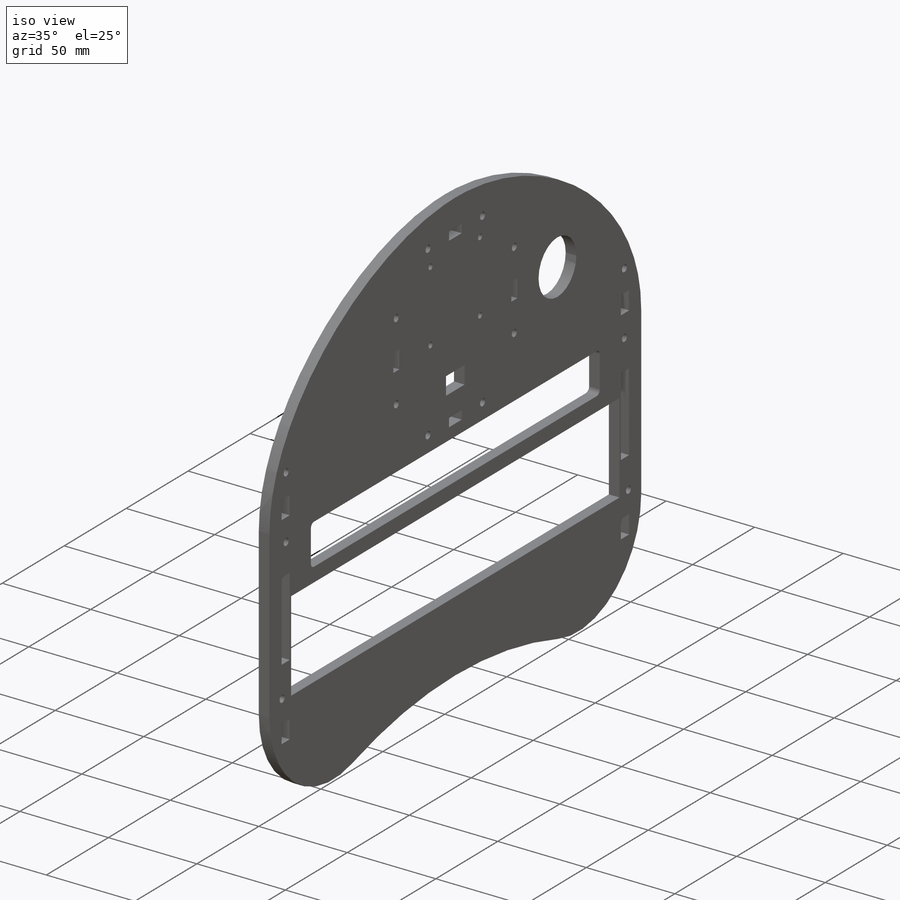
[diagram: iso view]
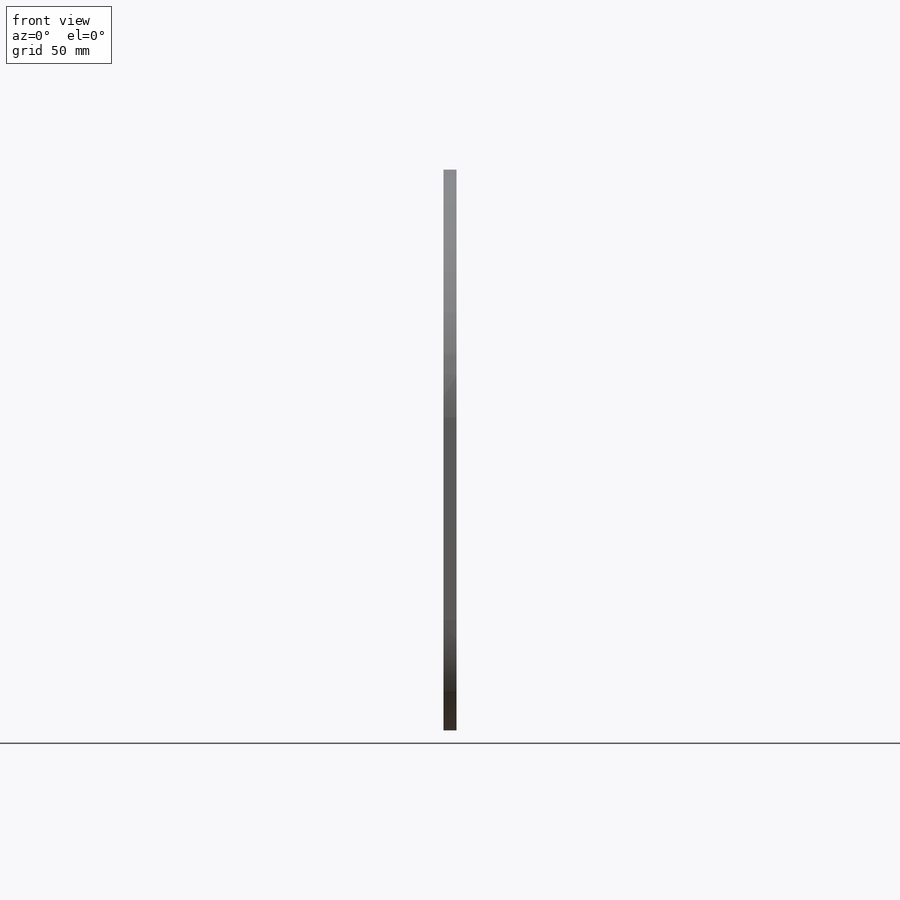
[diagram: front view]
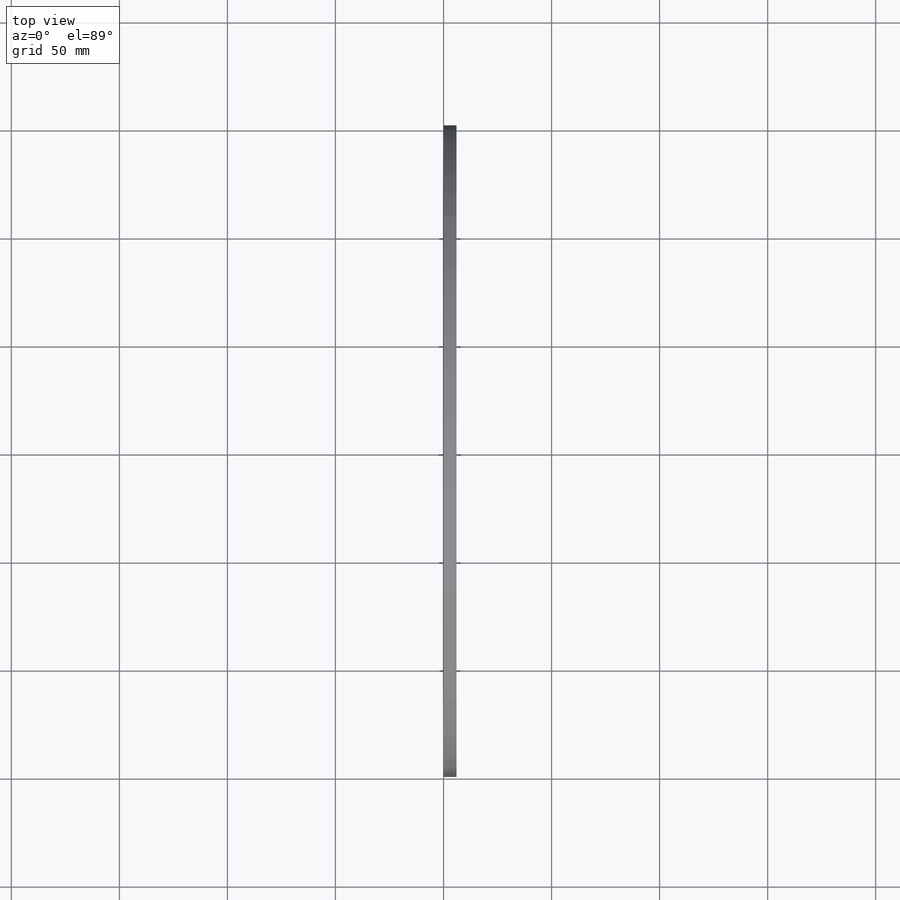
[diagram: top view]
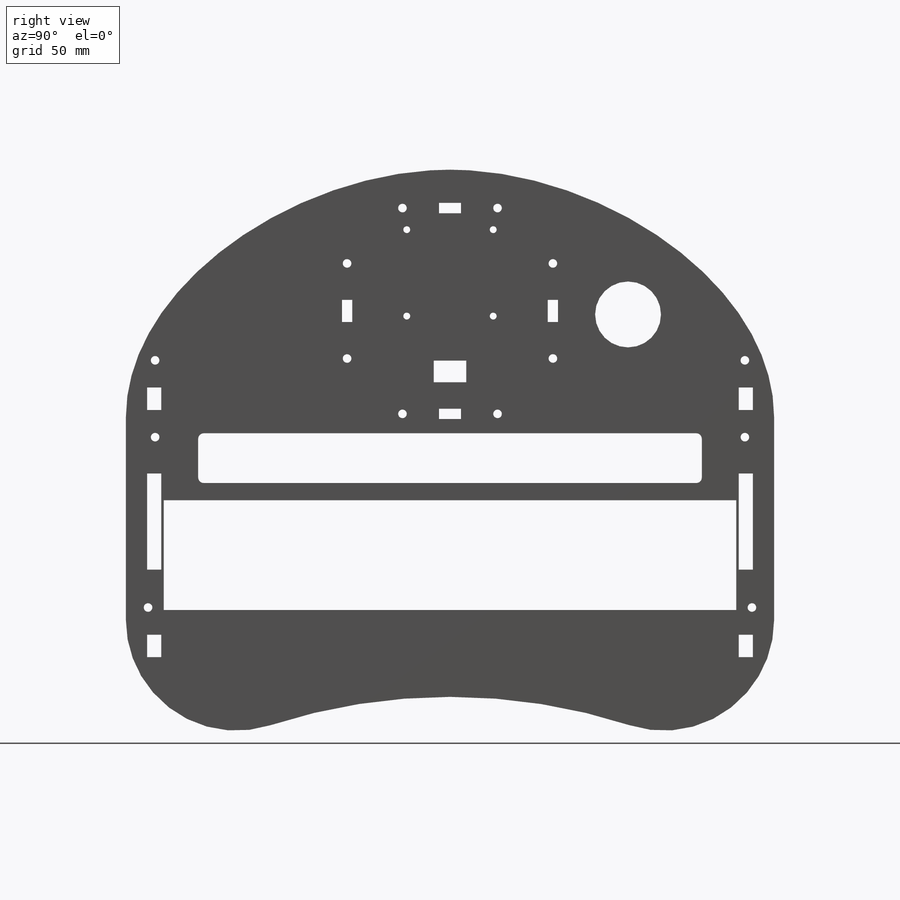
[diagram: right view]
SOLIDWORKS PART (.sldprt)
format: sldprt  version: not decoded by parser v0  size: 522,752 bytes
history: native  units: mm
features: fillet x8, sketch x2, material x1, extrude x1, cut_extrude x1 (+11 scaffold rows collapsed)
feature tree (24):
  scaffold x11  (default folders/planes/origin — collapsed)
  material  "Material <not specified>"
  sketch  "Sketch1"  dims[c1.D12=~63.667518mm c1.D13=70.0mm c2.D12=3.6428mm c2.D3=~4.679114mm c2.D7=~171.487481mm c2.D25=~6.118555mm c2.D13=~11.757157mm c2.D17=~179.530008mm c3.D3=~5.667585mm c3.D9=~177.758261mm c3.D17=~6.517479mm c3.D26=~3.46204mm c4.D9=~172.126197mm c4.D24=~172.126197mm c5.D9=177.8mm c5.D29=~3.96875mm c5.D1=152.54mm c5.D2=162.7mm c5.D3=143.34mm c5.D4=143.256mm c5.D5=247.65mm c5.D6=35.0mm c5.D7=6.0mm c5.D8=233.08mm c6.D9=24.0mm c6.D10=160.0mm c6.D11=160.0mm c7.D9=6.0mm c7.D10=160.0mm c7.D11=160.0mm c7.D12=6.0mm c8.D12=90.0deg c9.D12=120.0mm c9.D14=120.0mm c9.D15=120.0mm c10.D14=130.0mm c10.D15=60.0mm c10.D16=~126.110021mm c10.D17=~131.804725mm c11.D17=~179.753575deg c12.D17=~207.179221mm c13.D17=~179.753575deg c14.D17=~131.804725mm c15.D17=~179.753575deg c16.D17=~207.179221mm c17.D17=~0.246425deg c18.D17=~276.219303mm c18.D3=10.1mm c18.D7=2.5mm c18.D9=5.9944mm c18.D16=10.16mm c18.D18=~10.18332mm c18.D19=2.6mm c18.D20=~1.289363mm c18.D21=~1.289363mm c19.D20=~1.289363mm c19.D21=~1.289363mm c19.D19=~1.289363mm c19.D18=17.78mm c20.D19=17.78mm c20.D20=17.78mm c20.D21=17.78mm c20.D22=17.78mm c20.D23=10.16mm c20.D24=5.9944mm c20.D25=~113.00648mm c20.D4=~277.625935mm c20.D7=35.56mm c20.D5=50.8mm c20.D6=23.0mm c21.D7=247.65mm c21.D10=33.528mm c21.D11=~33.415318mm c21.D13=~33.415318mm c21.D17=33.528mm c22.D10=33.528mm c22.D13=~114.366307mm c23.D13=~1.134216deg c23.D17=~116.410518mm c24.D13=304.8mm c24.D17=203.2mm c24.D9=53.34mm c24.D16=10.16mm c25.D17=5.9944mm c26.D17=90.0deg c27.D17=5.9944mm c28.D17=90.0deg c29.D17=5.9944mm c29.D19=17.78mm c29.D3=169.926mm c29.D9=152.4mm c29.D13=152.4mm c29.D2=5.9944mm c30.D3=9.906mm c30.D4=~160.020845mm c30.D16=10.16mm c30.D17=17.78mm c30.D18=46.228mm c30.D19=38.1mm c30.D20=~15.469952mm c30.D21=12.7mm c30.D22=17.78mm c30.D23=17.78mm c30.D24=5.9944mm c30.D25=17.78mm c30.D26=9.906mm c30.D27=9.906mm c30.D28=5.9944mm c30.D9=15.24mm c30.D13=15.24mm c31.D19=116.54mm c31.D29=116.54mm c31.D13=~15.469952mm c31.D30=50.8mm c31.D9=152.4mm c32.D30=152.4mm c32.D31=6.55mm c32.D32=5.9944mm c32.D9=152.4mm c32.D13=152.4mm c32.D19=150.0mm c32.D4=15.494mm c32.D20=25.4mm c32.D24=10.36mm c32.D26=160.02mm c33.D20=38.1mm c33.D26=~1.175364mm c34.D20=8.636mm c34.D21=36.83mm c34.D26=6.858mm c34.D27=6.55mm c34.D28=6.858mm c34.D29=5.9944mm c34.D30=150.0mm c34.D32=150.0mm c34.D33=8.636mm c34.D7=17.78mm c34.D9=17.553mm c34.D12=17.78mm c34.D13=17.78mm c34.D15=17.78mm c34.D16=44.45mm c34.D17=17.78mm c34.D18=154.94mm c35.D20=132.5mm c35.D21=67.0mm c35.D14=70.0mm c36.D21=~43.37473mm c36.D22=90.0deg c37.D22=3.429mm c37.D23=4.406mm c38.D22=4.406mm c38.D23=4.406mm c39.D22=4.406mm c39.D23=4.406mm c40.D22=4.406mm c40.D4=4.406mm c40.D21=~77.871926mm c41.D22=~70.04125mm c41.D23=~38.846259mm c42.D22=~48.191167mm c42.D14=34.14mm c42.D21=8.0mm c43.D22=123.0mm c43.D15=~181.726339mm c43.D18=55.0mm c43.D23=30.0mm c43.D25=114.3967mm c43.D19=~179.049673deg]
  extrude  "Extrude1"  Depth=5.9944mm
  fillet  "Fillet3"  Radius=50.8mm
  fillet  "Fillet4"  Radius=50.8mm
  fillet  "Fillet5"  Radius=50.8mm
  fillet  "Fillet6"  Radius=50.8mm
  fillet  "Fillet12"  Radius=2.54mm
  fillet  "Fillet13"  Radius=2.54mm
  fillet  "Fillet14"  Radius=2.54mm
  fillet  "Fillet15"  Radius=2.54mm
  sketch  "Sketch3"  dims[c1.D6=~3.96875mm c1.D8=3.175mm c1.D1=95.2375mm c1.D2=10.0mm c1.D3=10.2mm c1.D4=4.7625mm c1.D5=44.0mm c1.D7=40.0mm c1.D9=10.0mm c1.D10=15.0mm c1.D11=8.0mm c2.D7=40.0mm c2.D11=10.0mm]
  cut_extrude  "Cut-Extrude1"  Depth=10mm
decode coverage: 12 of 12 modeling features carry decoded parameters
note: ~ marks probable driven/reference dimensions
note: suppression state not decoded; provenance and decode notes live in map.json
